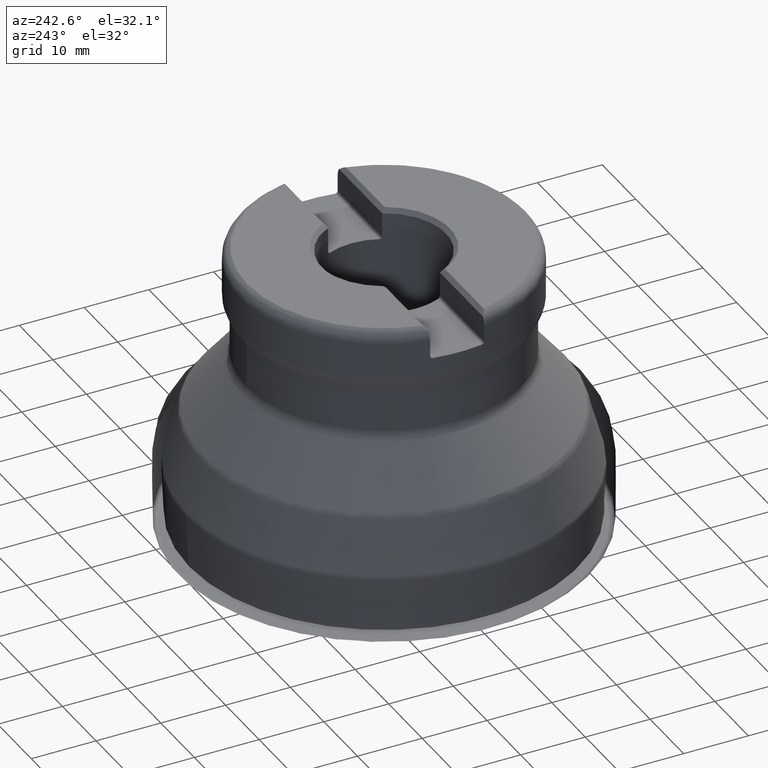
[diagram: clean part render]
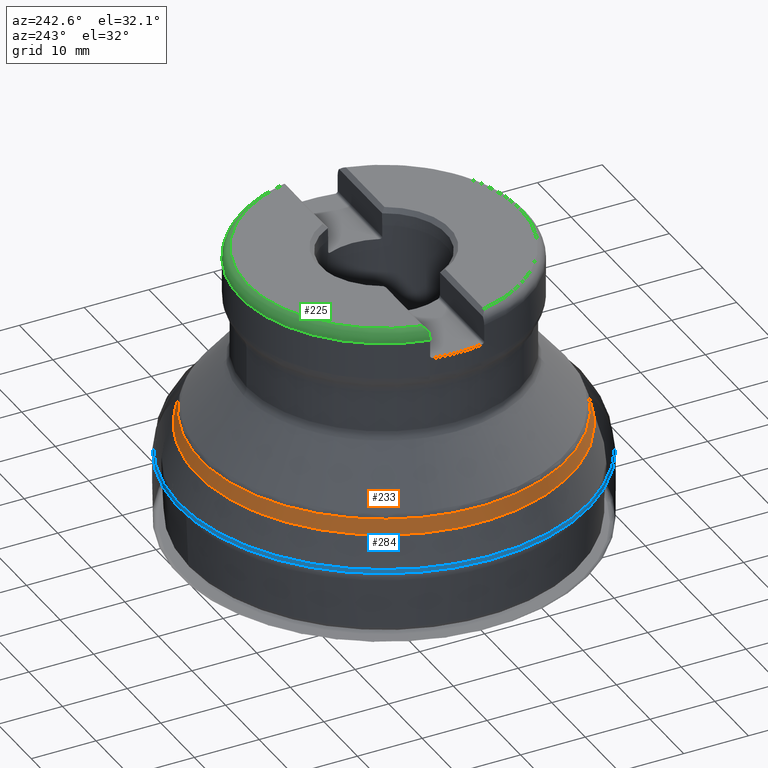
[diagram: same view with three faces highlighted in distinct colors, each labeled with its STEP entity id]
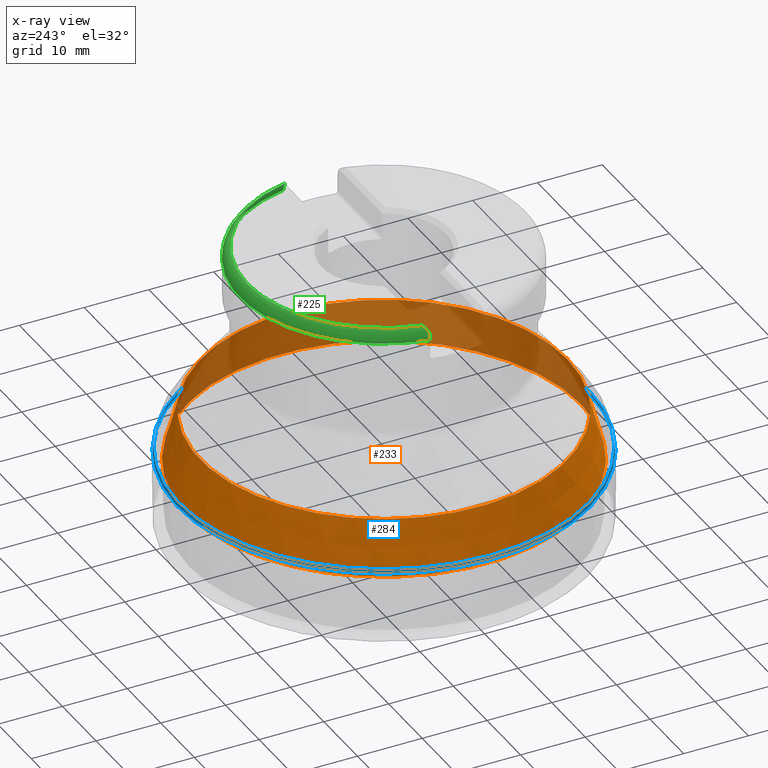
[diagram: x-ray of the same camera — body ghosted, the three highlighted faces saturated]
A machine part, auxiliary view with three faces highlighted in distinct colors.
The next image is the same camera in x-ray (body ghosted, the three faces saturated) — at least one of them is partly hidden behind the body in this view.
Their STEP definitions:

[orange] entity #233 — the highlighted conical surface has half-angle 15 deg.
#161=CONICAL_SURFACE('',#1187,30.5320886276437,15.0000000000002);
#233=ADVANCED_FACE('',(#378,#379),#161,.T.);
#378=FACE_BOUND('',#484,.T.);
#379=FACE_BOUND('',#485,.T.);
#484=EDGE_LOOP('',(#635));
#485=EDGE_LOOP('',(#636));
#635=ORIENTED_EDGE('',*,*,#957,.T.);
#636=ORIENTED_EDGE('',*,*,#958,.T.);
#859=VERTEX_POINT('',#2027);
#860=VERTEX_POINT('',#2029);
#957=EDGE_CURVE('',#859,#859,#1053,.T.);
#958=EDGE_CURVE('',#860,#860,#1054,.T.);
#1053=CIRCLE('',#1185,30.4535549365206);
#1054=CIRCLE('',#1186,28.3121337637959);
#1185=AXIS2_PLACEMENT_3D('',#2026,#1337,#1338);
#1186=AXIS2_PLACEMENT_3D('',#2028,#1339,#1340);
#1187=AXIS2_PLACEMENT_3D('',#2030,#1341,#1342);
#1337=DIRECTION('',(0.,1.17145536458252E-15,1.));
#1338=DIRECTION('',(0.,-1.,1.19622136303786E-15));
#1339=DIRECTION('',(0.,-1.17145536458252E-15,-1.));
#1340=DIRECTION('',(0.,-1.,1.22542757847173E-15));
#1341=DIRECTION('',(0.,-1.17145536458252E-15,-1.));
#1342=DIRECTION('',(0.,1.,-1.01125901011036E-15));
#2026=CARTESIAN_POINT('',(0.,1.18236064469168E-14,10.0930917253774));
#2027=CARTESIAN_POINT('',(0.,-30.4535549365206,10.0930917253774));
#2028=CARTESIAN_POINT('',(0.,2.11857519262831E-14,18.0849843423894));
#2029=CARTESIAN_POINT('',(0.,-28.3121337637959,18.0849843423895));
#2030=CARTESIAN_POINT('',(0.,1.14802625729087E-14,9.8));

[blue] entity #284 — the highlighted face is a SurfaceOfRevolution surface.
#117=SURFACE_OF_REVOLUTION('',#1146,#138);
#138=AXIS1_PLACEMENT('',#2388,#1515);
#284=ADVANCED_FACE('',(#444,#445),#117,.F.);
#444=FACE_BOUND('',#568,.T.);
#445=FACE_BOUND('',#569,.T.);
#568=EDGE_LOOP('',(#800));
#569=EDGE_LOOP('',(#801));
#800=ORIENTED_EDGE('',*,*,#1022,.T.);
#801=ORIENTED_EDGE('',*,*,#1023,.F.);
#906=VERTEX_POINT('',#2376);
#907=VERTEX_POINT('',#2380);
#1022=EDGE_CURVE('',#906,#906,#1082,.T.);
#1023=EDGE_CURVE('',#907,#907,#1083,.T.);
#1082=CIRCLE('',#1258,31.614098783535);
#1083=CIRCLE('',#1259,31.75);
#1146=B_SPLINE_CURVE_WITH_KNOTS('',3,(#2381,#2382,#2383,#2384,#2385,#2386,
#2387),.UNSPECIFIED.,.F.,.F.,(4,1,1,1,4),(0.,0.25,0.5,0.75,1.),
 .UNSPECIFIED.);
#1258=AXIS2_PLACEMENT_3D('',#2375,#1509,#1510);
#1259=AXIS2_PLACEMENT_3D('',#2379,#1513,#1514);
#1509=DIRECTION('',(0.,1.17145536458252E-15,1.));
#1510=DIRECTION('',(0.,-1.,1.1523084445629E-15));
#1513=DIRECTION('',(0.,1.17145536458252E-15,1.));
#1514=DIRECTION('',(0.,-1.,1.14737615733899E-15));
#1515=DIRECTION('',(0.,1.17145536458252E-15,1.));
#2375=CARTESIAN_POINT('',(0.,1.40505678306892E-14,11.9941128407367));
#2376=CARTESIAN_POINT('',(0.,-31.614098783535,11.9941128407368));
#2379=CARTESIAN_POINT('',(0.,1.33709491502019E-14,11.4139638218029));
#2380=CARTESIAN_POINT('',(0.,-31.75,11.4139638218029));
#2381=CARTESIAN_POINT('',(31.740973762062,-0.757040834686217,11.4139630280106));
#2382=CARTESIAN_POINT('',(31.7402771563062,-0.744479028526241,11.4613925550333));
#2383=CARTESIAN_POINT('',(31.732990210034,-0.725089238378372,11.5595457199347));
#2384=CARTESIAN_POINT('',(31.7046648196583,-0.713376421943403,11.7099796667064));
#2385=CARTESIAN_POINT('',(31.6611358391153,-0.718767081255306,11.8570814240338));
#2386=CARTESIAN_POINT('',(31.62473326082,-0.732658937327244,11.9498146429106));
#2387=CARTESIAN_POINT('',(31.6053929244536,-0.741875990992288,11.9941128407367));
#2388=CARTESIAN_POINT('',(0.,0.,0.));

[green] entity #225 — the highlighted toroidal blend (fillet) surface has major radius 20.225 mm and minor (blend) radius 2 mm.
#187=TOROIDAL_SURFACE('',#1165,20.225,2.);
#202=FACE_OUTER_BOUND('',#471,.T.);
#225=ADVANCED_FACE('',(#202),#187,.T.);
#471=EDGE_LOOP('',(#611,#612,#613,#614,#615,#616));
#611=ORIENTED_EDGE('',*,*,#936,.T.);
#612=ORIENTED_EDGE('',*,*,#937,.T.);
#613=ORIENTED_EDGE('',*,*,#938,.T.);
#614=ORIENTED_EDGE('',*,*,#927,.F.);
#615=ORIENTED_EDGE('',*,*,#939,.T.);
#616=ORIENTED_EDGE('',*,*,#940,.T.);
#833=VERTEX_POINT('',#1885);
#834=VERTEX_POINT('',#1887);
#841=VERTEX_POINT('',#1950);
#842=VERTEX_POINT('',#1951);
#843=VERTEX_POINT('',#1959);
#844=VERTEX_POINT('',#1980);
#927=EDGE_CURVE('',#833,#834,#1037,.T.);
#936=EDGE_CURVE('',#841,#842,#1040,.T.);
#937=EDGE_CURVE('',#842,#843,#1122,.T.);
#938=EDGE_CURVE('',#843,#834,#1123,.T.);
#939=EDGE_CURVE('',#833,#844,#1124,.T.);
#940=EDGE_CURVE('',#844,#841,#1125,.T.);
#1037=CIRCLE('',#1159,22.225);
#1040=CIRCLE('',#1164,21.0967797887081);
#1122=B_SPLINE_CURVE_WITH_KNOTS('',3,(#1952,#1953,#1954,#1955,#1956,#1957,
#1958),.UNSPECIFIED.,.F.,.F.,(4,3,4),(0.,0.837220303151918,1.),
 .UNSPECIFIED.);
#1123=B_SPLINE_CURVE_WITH_KNOTS('',3,(#1960,#1961,#1962,#1963,#1964,#1965,
#1966,#1967,#1968,#1969),.UNSPECIFIED.,.F.,.F.,(4,3,3,4),(0.,0.376771023747929,
0.898711731857338,1.),.UNSPECIFIED.);
#1124=B_SPLINE_CURVE_WITH_KNOTS('',3,(#1970,#1971,#1972,#1973,#1974,#1975,
#1976,#1977,#1978,#1979),.UNSPECIFIED.,.F.,.F.,(4,3,3,4),(0.,0.448584554281086,
0.753927563065997,1.),.UNSPECIFIED.);
#1125=B_SPLINE_CURVE_WITH_KNOTS('',3,(#1981,#1982,#1983,#1984,#1985,#1986,
#1987),.UNSPECIFIED.,.F.,.F.,(4,3,4),(0.,0.832217624562394,1.),
 .UNSPECIFIED.);
#1159=AXIS2_PLACEMENT_3D('',#1886,#1280,#1281);
#1164=AXIS2_PLACEMENT_3D('',#1949,#1291,#1292);
#1165=AXIS2_PLACEMENT_3D('',#1988,#1293,#1294);
#1280=DIRECTION('',(0.,-1.17145536458252E-15,-1.));
#1281=DIRECTION('',(0.,-1.,1.24884479710366E-15));
#1291=DIRECTION('',(0.,-1.17145536458252E-15,-1.));
#1292=DIRECTION('',(0.,1.,-1.31563091114431E-15));
#1293=DIRECTION('',(0.,1.17145536458252E-15,1.));
#1294=DIRECTION('',(0.,-1.,1.24884479710366E-15));
#1885=CARTESIAN_POINT('',(-21.8293380568445,4.17500000000005,42.65));
#1886=CARTESIAN_POINT('',(0.,4.99625712994447E-14,42.65));
#1887=CARTESIAN_POINT('',(21.8293380568446,4.17500000000005,42.65));
#1949=CARTESIAN_POINT('',(0.,5.20711909556932E-14,44.45));
#1950=CARTESIAN_POINT('',(-20.5492942081533,4.77500000000005,44.45));
#1951=CARTESIAN_POINT('',(20.5492942081533,4.77500000000005,44.45));
#1952=CARTESIAN_POINT('',(20.5492942081533,4.77500000000005,44.45));
#1953=CARTESIAN_POINT('',(20.8405479044769,4.65117394600913,44.3261739460091));
#1954=CARTESIAN_POINT('',(21.0962803161751,4.48048504372063,44.1554850437206));
#1955=CARTESIAN_POINT('',(21.303967487852,4.29027392727771,43.9652739272777));
#1956=CARTESIAN_POINT('',(21.3449610549215,4.25272980697262,43.9277298069726));
#1957=CARTESIAN_POINT('',(21.3843036087422,4.21425711036659,43.8892571103665));
#1958=CARTESIAN_POINT('',(21.4219513583614,4.17500000000005,43.85));
#1959=CARTESIAN_POINT('',(21.4219513583614,4.17500000000005,43.85));
#1960=CARTESIAN_POINT('',(21.4219513583614,4.17500000000005,43.85));
#1961=CARTESIAN_POINT('',(21.5199407292163,4.17500000000005,43.7217603032552));
#1962=CARTESIAN_POINT('',(21.6029074456128,4.17500000000005,43.5805388619185));
#1963=CARTESIAN_POINT('',(21.6670259304722,4.17500000000005,43.4324302648652));
#1964=CARTESIAN_POINT('',(21.7557647652759,4.17500000000005,43.2274506188902));
#1965=CARTESIAN_POINT('',(21.8100320221803,4.17500000000005,43.0040800576923));
#1966=CARTESIAN_POINT('',(21.8249509282185,4.17500000000005,42.7812153850567));
#1967=CARTESIAN_POINT('',(21.82787394264,4.17500000000005,42.7375502094418));
#1968=CARTESIAN_POINT('',(21.8293380568446,4.17500000000005,42.6937629018096));
#1969=CARTESIAN_POINT('',(21.8293380568446,4.17500000000005,42.65));
#1970=CARTESIAN_POINT('',(-21.8293380568445,4.17500000000005,42.65));
#1971=CARTESIAN_POINT('',(-21.8293380568445,4.17500000000005,42.8417435150046));
#1972=CARTESIAN_POINT('',(-21.800642855575,4.17500000000005,43.035494981409));
#1973=CARTESIAN_POINT('',(-21.7451742608107,4.17500000000005,43.2190400999527));
#1974=CARTESIAN_POINT('',(-21.7070744107077,4.17500000000005,43.3451121869303));
#1975=CARTESIAN_POINT('',(-21.6560313523743,4.17500000000005,43.467948347772));
#1976=CARTESIAN_POINT('',(-21.5936447366564,4.17500000000005,43.5839383467893));
#1977=CARTESIAN_POINT('',(-21.5436466593816,4.17500000000005,43.676895415661));
#1978=CARTESIAN_POINT('',(-21.4860362968998,4.17500000000005,43.766131382288));
#1979=CARTESIAN_POINT('',(-21.4219513583614,4.17500000000005,43.85));
#1980=CARTESIAN_POINT('',(-21.4219513583614,4.17500000000005,43.85));
#1981=CARTESIAN_POINT('',(-21.4219513583614,4.17500000000005,43.85));
#1982=CARTESIAN_POINT('',(-21.2322763809206,4.37278317690956,44.0477831769095));
#1983=CARTESIAN_POINT('',(-20.9960194118546,4.55364902188793,44.2286490218879));
#1984=CARTESIAN_POINT('',(-20.7224203938835,4.69392828722896,44.3689282872289));
#1985=CARTESIAN_POINT('',(-20.6663847352939,4.72265880343526,44.3976588034352));
#1986=CARTESIAN_POINT('',(-20.6086138403839,4.74978035102778,44.4247803510277));
#1987=CARTESIAN_POINT('',(-20.5492942081537,4.7750000000004,44.4500000000003));
#1988=CARTESIAN_POINT('',(0.,4.99625712994447E-14,42.65));